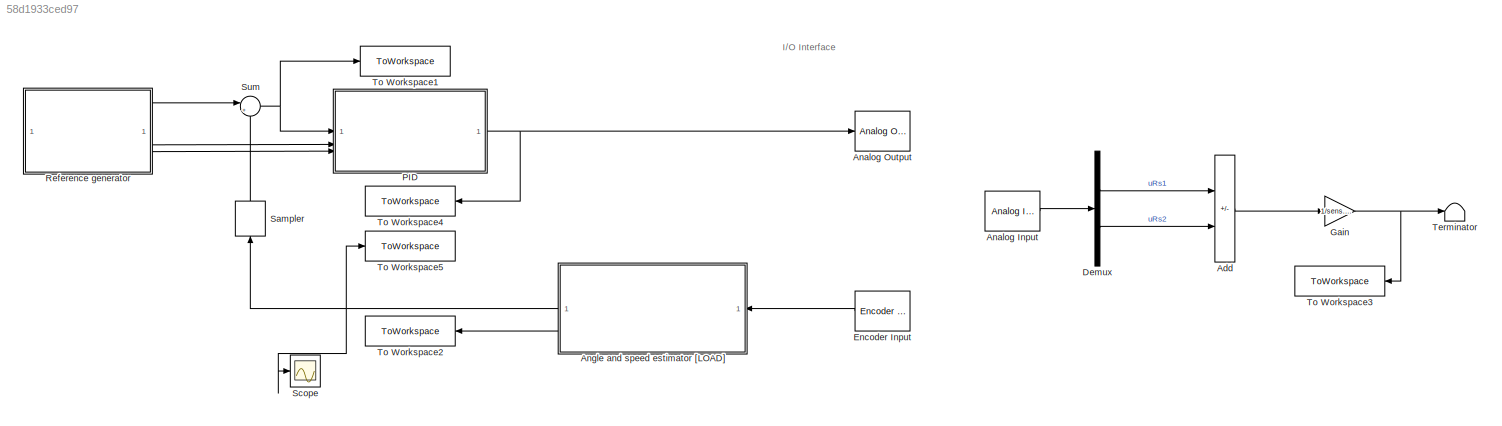
MODEL slx_58d1933ced97
KIND model
CONFIG AbsTol = auto
CONFIG EnableMultiTasking = off
CONFIG FixedStep = 0.001
CONFIG MaxStep = auto
CONFIG MinStep = auto
CONFIG RelTol = 1e-3
CONFIG SampleTimeConstraint = Unconstrained
CONFIG SolverName = FixedStepAuto
CONFIG StartTime = 0.0
CONFIG StopTime = 10
BLOCK [Sum] Add
  IconShape = rectangular
  Inputs = +-
BLOCK [Reference] Analog Input  REF=sldrtlib/Analog Input
  AttributesFormatString = National Instruments\nPCI-6221 [auto]
  SourceBlock = sldrtlib/Analog Input
  SourceType = Simulink Desktop Real-Time Analog Input
BLOCK [Reference] Analog Output  REF=sldrtlib/Analog Output
  AttributesFormatString = National Instruments\nPCI-6221 [auto]
  SourceBlock = sldrtlib/Analog Output
  SourceType = Simulink Desktop Real-Time Analog Output
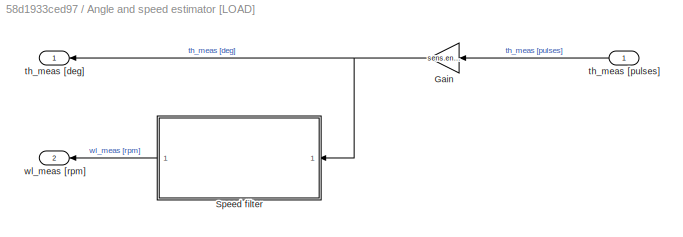
BLOCK [SubSystem] Angle and speed estimator [LOAD]
  NameLocation = top
BLOCK [Gain] Angle and speed estimator [LOAD]/Gain
  Gain = sens.enc.pulse2deg
  NameLocation = top
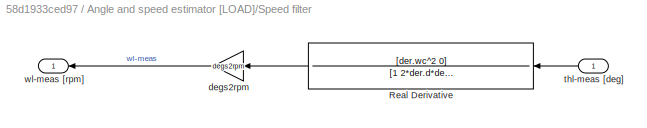
BLOCK [SubSystem] Angle and speed estimator [LOAD]/Speed filter
  NameLocation = top
BLOCK [TransferFcn] Angle and speed estimator [LOAD]/Speed filter/Real Derivative
  Denominator = [1 2*der.d*der.wc der.wc^2]
  NameLocation = top
  Numerator = [der.wc^2 0]
BLOCK [Gain] Angle and speed estimator [LOAD]/Speed filter/degs2rpm
  Gain = degs2rpm
BLOCK [Inport] Angle and speed estimator [LOAD]/Speed filter/thl-meas [deg]
BLOCK [Outport] Angle and speed estimator [LOAD]/Speed filter/wl-meas [rpm]
BLOCK [Outport] Angle and speed estimator [LOAD]/th_meas [deg]
BLOCK [Inport] Angle and speed estimator [LOAD]/th_meas [pulses]
  NameLocation = top
BLOCK [Outport] Angle and speed estimator [LOAD]/wl_meas [rpm]
  Port = 2
BLOCK [Demux] Demux
  Outputs = 2
BLOCK [Reference] Encoder Input  REF=sldrtlib/Encoder Input
  AttributesFormatString = National Instruments\nPCI-6221 [auto]
  NameLocation = top
  SourceBlock = sldrtlib/Encoder Input
  SourceType = Simulink Desktop Real-Time Encoder Input
BLOCK [Gain] Gain
  Gain = 1/sens.curr.Rs
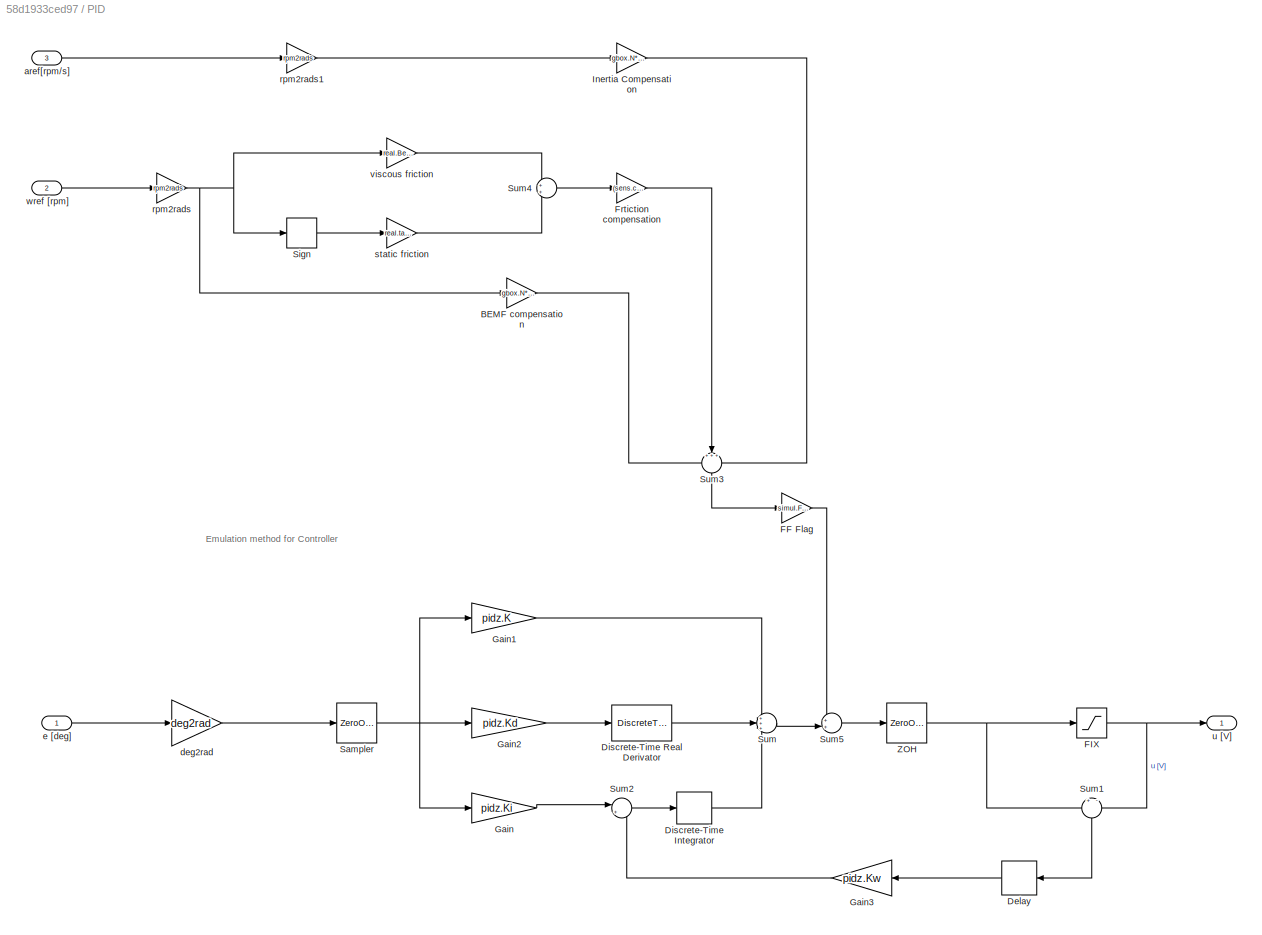
BLOCK [SubSystem] PID
BLOCK [Gain] PID/BEMF compensation
  Gain = gbox.N*mot.Ke/drv.dcgain
BLOCK [Delay] PID/Delay
  DelayLength = 1
  InputPortMap = u0
  NameLocation = top
BLOCK [DiscreteIntegrator] PID/Discrete-Time Integrator
  ICPrevOutput = DiscIntNeverNeededParam
  ICPrevScaledInput = DiscIntNeverNeededParam
  InitialConditionSetting = Auto
  IntegratorMethod = Integration: Backward Euler
  SampleTime = T(simul.Ts_selector)
BLOCK [DiscreteTransferFcn] PID/Discrete-Time Real Derivator 
  Denominator = [pidz.T_l+T(simul.Ts_selector) -pidz.T_l]
  InputPortMap = u0
  Numerator = [1 -1]
  SampleTime = T(simul.Ts_selector)
BLOCK [Gain] PID/FF Flag
  Gain = simul.FFW
BLOCK [Saturate] PID/FIX 
  LowerLimit = -10
  UpperLimit = 10
BLOCK [Gain] PID/Frtiction compensation
  Gain = (sens.curr.Rs+mot.R)/(mot.Kt*drv.dcgain*gbox.N)
BLOCK [Gain] PID/Gain
  Gain = pidz.Ki
BLOCK [Gain] PID/Gain1
  Gain = pidz.K
BLOCK [Gain] PID/Gain2
  Gain = pidz.Kd
BLOCK [Gain] PID/Gain3
  Gain = pidz.Kw
  NameLocation = top
BLOCK [Gain] PID/Inertia Compensation
  Gain = gbox.N*(sens.curr.Rs+mot.R)*real.Jeq/(mot.Kt*drv.dcgain)
BLOCK [ZeroOrderHold] PID/Sampler
  SampleTime = T(simul.Ts_selector)
BLOCK [Signum] PID/Sign
BLOCK [Sum] PID/Sum
  Inputs = +++
BLOCK [Sum] PID/Sum1
  Inputs = +|-
  NameLocation = left
BLOCK [Sum] PID/Sum2
  Inputs = |+-
BLOCK [Sum] PID/Sum3
  Inputs = +++
  NameLocation = left
BLOCK [Sum] PID/Sum4
BLOCK [Sum] PID/Sum5
  Inputs = ++|
BLOCK [ZeroOrderHold] PID/ZOH
  SampleTime = T(simul.Ts_selector)
BLOCK [Inport] PID/aref[rpm//s]
  Port = 3
BLOCK [Gain] PID/deg2rad
  Gain = deg2rad
BLOCK [Inport] PID/e [deg]
BLOCK [Gain] PID/rpm2rads
  Gain = rpm2rads
BLOCK [Gain] PID/rpm2rads1
  Gain = rpm2rads
BLOCK [Gain] PID/static friction
  Gain = real.tausf
BLOCK [Outport] PID/u [V]
BLOCK [Gain] PID/viscous friction
  Gain = real.Beq*gbox.N^2
BLOCK [Inport] PID/wref [rpm]
  Port = 2
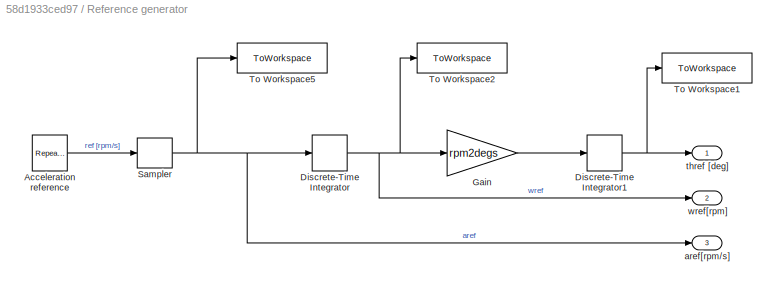
BLOCK [SubSystem] Reference generator
BLOCK [Reference] Reference generator/Acceleration reference  REF=simulink/Sources/Repeating
Sequence
Stair
  SourceBlock = simulink/Sources/Repeating\nSequence\nStair
  SourceType = Repeating Sequence Stair
BLOCK [DiscreteIntegrator] Reference generator/Discrete-Time Integrator
  ICPrevOutput = DiscIntNeverNeededParam
  ICPrevScaledInput = DiscIntNeverNeededParam
  InitialConditionSetting = Auto
  IntegratorMethod = Integration: Backward Euler
  SampleTime = -1
BLOCK [DiscreteIntegrator] Reference generator/Discrete-Time Integrator1
  ICPrevOutput = DiscIntNeverNeededParam
  ICPrevScaledInput = DiscIntNeverNeededParam
  InitialConditionSetting = Auto
  IntegratorMethod = Integration: Backward Euler
  SampleTime = -1
BLOCK [Gain] Reference generator/Gain
  Gain = rpm2degs
BLOCK [ZeroOrderHold] Reference generator/Sampler
  SampleTime = T(simul.Ts_selector)
BLOCK [ToWorkspace] Reference generator/To Workspace1
  FixptAsFi = on
  MaxDataPoints = inf
  SampleTime = Ts
  SaveFormat = Structure With Time
  VariableName = thref
BLOCK [ToWorkspace] Reference generator/To Workspace2
  FixptAsFi = on
  MaxDataPoints = inf
  SampleTime = Ts
  SaveFormat = Structure With Time
  VariableName = wref
BLOCK [ToWorkspace] Reference generator/To Workspace5
  FixptAsFi = on
  MaxDataPoints = inf
  SampleTime = Ts
  SaveFormat = Structure With Time
  VariableName = aref
BLOCK [Outport] Reference generator/aref[rpm//s]
  Port = 3
BLOCK [Outport] Reference generator/thref [deg]
BLOCK [Outport] Reference generator/wref[rpm]
  Port = 2
BLOCK [ZeroOrderHold] Sampler
  NameLocation = right
  SampleTime = T(simul.Ts_selector)
BLOCK [Scope] Scope
  Floating = off
  NumInputPorts = 1
  ScopeSpecificationString = Simulink.scopes.TimeScopeBlockCfg('CurrentConfiguration', extmgr.ConfigurationSet(extmgr.Configuration('Core','General UI',true),extmgr.Configuration('Core','Source UI',true),extmgr.Configuration('Sources','WiredSimulink',true),extmgr.Configuration('Visuals','Time Domain',true,'SerializedDisplays',{struct('MinYLimReal','-338.6475','MaxYLimReal','3038.8275','YLabelReal','','MinYLimMag',' 0.00000','...<+1451ch>
BLOCK [Sum] Sum
  Inputs = |+-
BLOCK [Terminator] Terminator
BLOCK [ToWorkspace] To Workspace1
  FixptAsFi = on
  MaxDataPoints = inf
  SampleTime = Ts
  SaveFormat = Structure With Time
  VariableName = e
BLOCK [ToWorkspace] To Workspace2
  FixptAsFi = on
  MaxDataPoints = inf
  NameLocation = top
  SampleTime = Ts
  SaveFormat = Structure With Time
  VariableName = wl_meas
BLOCK [ToWorkspace] To Workspace3
  FixptAsFi = on
  MaxDataPoints = inf
  NameLocation = top
  SampleTime = Ts
  SaveFormat = Structure With Time
  VariableName = ia
BLOCK [ToWorkspace] To Workspace4
  FixptAsFi = on
  MaxDataPoints = inf
  NameLocation = top
  SampleTime = Ts
  SaveFormat = Structure With Time
  VariableName = u
BLOCK [ToWorkspace] To Workspace5
  FixptAsFi = on
  MaxDataPoints = inf
  SampleTime = Ts
  SaveFormat = Structure With Time
  VariableName = thl_meas
ANNOTATION (root): I/O Interface
ANNOTATION PID: Emulation method for Controller
LINE Add:1 -> Gain:1
LINE Analog Input:1 -> Demux:1
NET Angle and speed estimator [LOAD]/Gain:1 -> Angle and speed estimator [LOAD]/Speed filter:1, Angle and speed estimator [LOAD]/th_meas [deg]:1
LINE Angle and speed estimator [LOAD]/Speed filter/Real Derivative:1 -> Angle and speed estimator [LOAD]/Speed filter/degs2rpm:1
LINE Angle and speed estimator [LOAD]/Speed filter/degs2rpm:1 -> Angle and speed estimator [LOAD]/Speed filter/wl-meas [rpm]:1
LINE Angle and speed estimator [LOAD]/Speed filter/thl-meas [deg]:1 -> Angle and speed estimator [LOAD]/Speed filter/Real Derivative:1
LINE Angle and speed estimator [LOAD]/Speed filter:1 -> Angle and speed estimator [LOAD]/wl_meas [rpm]:1
LINE Angle and speed estimator [LOAD]/th_meas [pulses]:1 -> Angle and speed estimator [LOAD]/Gain:1
NET Angle and speed estimator [LOAD]:1 -> Sampler:1, Scope:1, To Workspace5:1
LINE Angle and speed estimator [LOAD]:2 -> To Workspace2:1
LINE Demux:1 -> Add:1
LINE Demux:2 -> Add:2
LINE Encoder Input:1 -> Angle and speed estimator [LOAD]:1
NET Gain:1 -> Terminator:1, To Workspace3:1
LINE PID/BEMF compensation:1 -> PID/Sum3:1
LINE PID/Delay:1 -> PID/Gain3:1
LINE PID/Discrete-Time Integrator:1 -> PID/Sum:3
LINE PID/Discrete-Time Real Derivator :1 -> PID/Sum:2
LINE PID/FF Flag:1 -> PID/Sum5:1
NET PID/FIX :1 -> PID/Sum1:2, PID/u [V]:1
LINE PID/Frtiction compensation:1 -> PID/Sum3:2
LINE PID/Gain1:1 -> PID/Sum:1
LINE PID/Gain2:1 -> PID/Discrete-Time Real Derivator :1
LINE PID/Gain3:1 -> PID/Sum2:2
LINE PID/Gain:1 -> PID/Sum2:1
LINE PID/Inertia Compensation:1 -> PID/Sum3:3
NET PID/Sampler:1 -> PID/Gain1:1, PID/Gain2:1, PID/Gain:1
LINE PID/Sign:1 -> PID/static friction:1
LINE PID/Sum1:1 -> PID/Delay:1
LINE PID/Sum2:1 -> PID/Discrete-Time Integrator:1
LINE PID/Sum3:1 -> PID/FF Flag:1
LINE PID/Sum4:1 -> PID/Frtiction compensation:1
LINE PID/Sum5:1 -> PID/ZOH:1
LINE PID/Sum:1 -> PID/Sum5:2
NET PID/ZOH:1 -> PID/FIX :1, PID/Sum1:1
LINE PID/aref[rpm//s]:1 -> PID/rpm2rads1:1
LINE PID/deg2rad:1 -> PID/Sampler:1
LINE PID/e [deg]:1 -> PID/deg2rad:1
LINE PID/rpm2rads1:1 -> PID/Inertia Compensation:1
NET PID/rpm2rads:1 -> PID/BEMF compensation:1, PID/Sign:1, PID/viscous friction:1
LINE PID/static friction:1 -> PID/Sum4:2
LINE PID/viscous friction:1 -> PID/Sum4:1
LINE PID/wref [rpm]:1 -> PID/rpm2rads:1
NET PID:1 -> Analog Output:1, To Workspace4:1
LINE Reference generator/Acceleration reference:1 -> Reference generator/Sampler:1
NET Reference generator/Discrete-Time Integrator1:1 -> Reference generator/To Workspace1:1, Reference generator/thref [deg]:1
NET Reference generator/Discrete-Time Integrator:1 -> Reference generator/Gain:1, Reference generator/To Workspace2:1, Reference generator/wref[rpm]:1
LINE Reference generator/Gain:1 -> Reference generator/Discrete-Time Integrator1:1
NET Reference generator/Sampler:1 -> Reference generator/Discrete-Time Integrator:1, Reference generator/To Workspace5:1, Reference generator/aref[rpm//s]:1
LINE Reference generator:1 -> Sum:1
LINE Reference generator:2 -> PID:2
LINE Reference generator:3 -> PID:3
LINE Sampler:1 -> Sum:2
NET Sum:1 -> PID:1, To Workspace1:1
note: NET lines group one-source signal fan-out (src -> all destinations, sorted); 1:1 wires keep LINE
